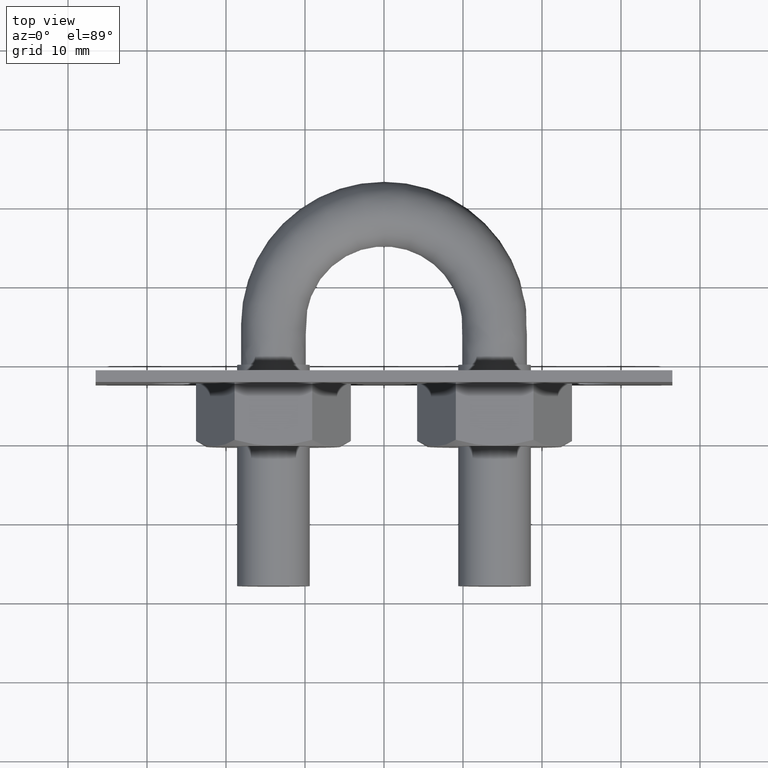
[diagram: clean part render]
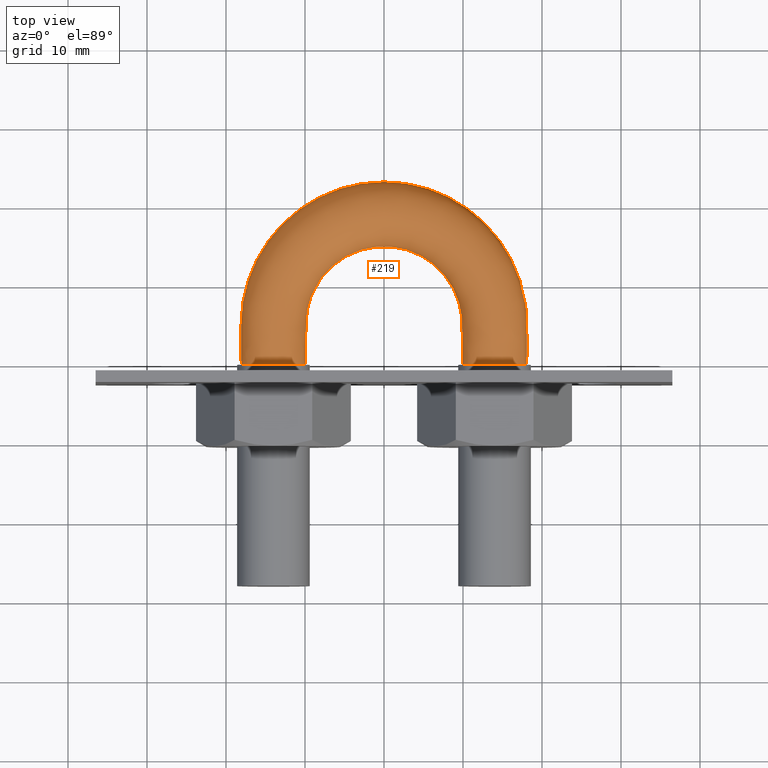
[diagram: same view with one face highlighted and labeled with its STEP entity id]
A machine part, top view. The second image highlights one B-rep face of the part: STEP entity #219.
In plain terms, the highlighted face is a freeform B-spline surface patch.
Its self-contained STEP definition (entity closure, byte-faithful):
#219 = ADVANCED_FACE( '', ( #291, #292 ), #293, .F. );
#291 = FACE_OUTER_BOUND( '', #452, .T. );
#292 = FACE_OUTER_BOUND( '', #453, .T. );
#293 = B_SPLINE_SURFACE_WITH_KNOTS( '', 3, 3, ( ( #454, #455, #456, #457, #458, #459, #460, #461, #462, #463, #464, #465, #466, #467, #468, #469 ), ( #470, #471, #472, #473, #474, #475, #476, #477, #478, #479, #480, #481, #482, #483, #484, #485 ), ( #486, #487, #488, #489, #490, #491, #492, #493, #494, #495, #496, #497, #498, #499, #500, #501 ), ( #502, #503, #504, #505, #506, #507, #508, #509, #510, #511, #512, #513, #514, #515, #516, #517 ), ( #518, #519, #520, #521, #522, #523, #524, #525, #526, #527, #528, #529, #530, #531, #532, #533 ), ( #534, #535, #536, #537, #538, #539, #540, #541, #542, #543, #544, #545, #546, #547, #548, #549 ), ( #550, #551, #552, #553, #554, #555, #556, #557, #558, #559, #560, #561, #562, #563, #564, #565 ), ( #566, #567, #568, #569, #570, #571, #572, #573, #574, #575, #576, #577, #578, #579, #580, #581 ), ( #582, #583, #584, #585, #586, #587, #588, #589, #590, #591, #592, #593, #594, #595, #596, #597 ), ( #598, #599, #600, #601, #602, #603, #604, #605, #606, #607, #608, #609, #610, #611, #612, #613 ) ), .UNSPECIFIED., .T., .F., .F., ( 2, 1, 1, 1, 1, 1, 1, 1, 1, 1, 1, 2 ), ( 4, 3, 1, 1, 1, 1, 1, 1, 3, 4 ), ( -0.285714285714286, -0.142857142857143, 0.000000000000000, 0.142857142857143, 0.285714285714286, 0.428571428571429, 0.571428571428571, 0.714285714285714, 0.857142857142857, 1.00000000000000, 1.14285714285714, 1.28571428571429 ), ( 0.000000000000000, 1.00000000000000, 1.50000000000000, 2.00000000000000, 3.00000000000000, 4.00000000000000, 5.00000000000000, 5.50000000000000, 6.00000000000000, 7.00000000000000 ), .UNSPECIFIED. );
#452 = EDGE_LOOP( '', ( #772 ) );
#453 = EDGE_LOOP( '', ( #773 ) );
#454 = CARTESIAN_POINT( '', ( -11.0768231851220, -1.21873744861496E-015, -3.66554778583225 ) );
#455 = CARTESIAN_POINT( '', ( -11.0768231851220, 1.70000000000001, -3.66554778583225 ) );
#456 = CARTESIAN_POINT( '', ( -11.0768231851220, 3.40000000000002, -3.66554778583225 ) );
#457 = CARTESIAN_POINT( '', ( -11.0768231851220, 5.10000000000004, -3.66554778583225 ) );
#458 = CARTESIAN_POINT( '', ( -11.0768231851219, 6.24814688710956, -3.66554778583225 ) );
#459 = CARTESIAN_POINT( '', ( -10.6980184043242, 8.58085942037710, -3.66554778583225 ) );
#460 = CARTESIAN_POINT( '', ( -8.58609946295960, 12.7673424534321, -3.66554778583225 ) );
#461 = CARTESIAN_POINT( '', ( -3.65508581849396, 16.3515204742163, -3.66554778583225 ) );
#462 = CARTESIAN_POINT( '', ( 3.65508581849401, 16.3515204742163, -3.66554778583225 ) );
#463 = CARTESIAN_POINT( '', ( 8.58609946295963, 12.7673424534321, -3.66554778583224 ) );
#464 = CARTESIAN_POINT( '', ( 10.6980184043242, 8.58085942037707, -3.66554778583226 ) );
#465 = CARTESIAN_POINT( '', ( 11.0768231851220, 6.24814688710953, -3.66554778583225 ) );
#466 = CARTESIAN_POINT( '', ( 11.0768231851220, 5.10000000000000, -3.66554778583225 ) );
#467 = CARTESIAN_POINT( '', ( 11.0768231851220, 3.40000000000000, -3.66554778583225 ) );
#468 = CARTESIAN_POINT( '', ( 11.0768231851220, 1.70000000000000, -3.66554778583225 ) );
#469 = CARTESIAN_POINT( '', ( 11.0768231851220, -6.73562089679684E-015, -3.66554778583225 ) );
#470 = CARTESIAN_POINT( '', ( -9.31158840743902, -1.59472503032496E-015, 0.000000000000000 ) );
#471 = CARTESIAN_POINT( '', ( -9.31158840743901, 1.70000000000001, 0.000000000000000 ) );
#472 = CARTESIAN_POINT( '', ( -9.31158840743901, 3.40000000000002, 0.000000000000000 ) );
#473 = CARTESIAN_POINT( '', ( -9.31158840743901, 5.10000000000004, 0.000000000000000 ) );
#474 = CARTESIAN_POINT( '', ( -9.31158840743900, 6.05696037119473, 0.000000000000000 ) );
#475 = CARTESIAN_POINT( '', ( -8.99143206448358, 8.02929226792843, 0.000000000000000 ) );
#476 = CARTESIAN_POINT( '', ( -7.21879641267879, 11.5436508845794, 0.000000000000000 ) );
#477 = CARTESIAN_POINT( '', ( -3.07217095711635, 14.5588958187968, 0.000000000000000 ) );
#478 = CARTESIAN_POINT( '', ( 3.07217095711641, 14.5588958187967, 0.000000000000000 ) );
#479 = CARTESIAN_POINT( '', ( 7.21879641267881, 11.5436508845794, 0.000000000000000 ) );
#480 = CARTESIAN_POINT( '', ( 8.99143206448360, 8.02929226792840, 0.000000000000000 ) );
#481 = CARTESIAN_POINT( '', ( 9.31158840743901, 6.05696037119469, 0.000000000000000 ) );
#482 = CARTESIAN_POINT( '', ( 9.31158840743901, 5.09999999999999, 0.000000000000000 ) );
#483 = CARTESIAN_POINT( '', ( 9.31158840743901, 3.39999999999999, 0.000000000000000 ) );
#484 = CARTESIAN_POINT( '', ( 9.31158840743901, 1.69999999999999, 0.000000000000000 ) );
#485 = CARTESIAN_POINT( '', ( 9.31158840743901, -1.11630752122747E-014, 0.000000000000000 ) );
#486 = CARTESIAN_POINT( '', ( -11.0768231851220, -7.69852137737989E-016, 3.66554778583225 ) );
#487 = CARTESIAN_POINT( '', ( -11.0768231851220, 1.70000000000001, 3.66554778583225 ) );
#488 = CARTESIAN_POINT( '', ( -11.0768231851220, 3.40000000000002, 3.66554778583225 ) );
#489 = CARTESIAN_POINT( '', ( -11.0768231851220, 5.10000000000004, 3.66554778583225 ) );
#490 = CARTESIAN_POINT( '', ( -11.0768231851219, 6.24814688710956, 3.66554778583225 ) );
#491 = CARTESIAN_POINT( '', ( -10.6980184043241, 8.58085942037710, 3.66554778583225 ) );
#492 = CARTESIAN_POINT( '', ( -8.58609946295961, 12.7673424534321, 3.66554778583225 ) );
#493 = CARTESIAN_POINT( '', ( -3.65508581849396, 16.3515204742163, 3.66554778583225 ) );
#494 = CARTESIAN_POINT( '', ( 3.65508581849401, 16.3515204742163, 3.66554778583225 ) );
#495 = CARTESIAN_POINT( '', ( 8.58609946295963, 12.7673424534321, 3.66554778583224 ) );
#496 = CARTESIAN_POINT( '', ( 10.6980184043242, 8.58085942037707, 3.66554778583226 ) );
#497 = CARTESIAN_POINT( '', ( 11.0768231851220, 6.24814688710953, 3.66554778583225 ) );
#498 = CARTESIAN_POINT( '', ( 11.0768231851220, 5.10000000000000, 3.66554778583225 ) );
#499 = CARTESIAN_POINT( '', ( 11.0768231851220, 3.40000000000000, 3.66554778583225 ) );
#500 = CARTESIAN_POINT( '', ( 11.0768231851220, 1.70000000000000, 3.66554778583225 ) );
#501 = CARTESIAN_POINT( '', ( 11.0768231851220, -7.18450620767381E-015, 3.66554778583225 ) );
#502 = CARTESIAN_POINT( '', ( -15.0432697263483, 6.34735116687398E-016, 4.57086332538454 ) );
#503 = CARTESIAN_POINT( '', ( -15.0432697263483, 1.70000000000001, 4.57086332538454 ) );
#504 = CARTESIAN_POINT( '', ( -15.0432697263483, 3.40000000000002, 4.57086332538454 ) );
#505 = CARTESIAN_POINT( '', ( -15.0432697263483, 5.10000000000003, 4.57086332538454 ) );
#506 = CARTESIAN_POINT( '', ( -15.0432697263483, 6.67773908887600, 4.57086332538454 ) );
#507 = CARTESIAN_POINT( '', ( -14.5326831019287, 9.82021956200977, 4.57086332538454 ) );
#508 = CARTESIAN_POINT( '', ( -11.6584015290413, 15.5169524498852, 4.57086332538453 ) );
#509 = CARTESIAN_POINT( '', ( -4.96488362271324, 20.3795115120651, 4.57086332538454 ) );
#510 = CARTESIAN_POINT( '', ( 4.96488362271328, 20.3795115120651, 4.57086332538454 ) );
#511 = CARTESIAN_POINT( '', ( 11.6584015290413, 15.5169524498851, 4.57086332538453 ) );
#512 = CARTESIAN_POINT( '', ( 14.5326831019288, 9.82021956200975, 4.57086332538455 ) );
#513 = CARTESIAN_POINT( '', ( 15.0432697263483, 6.67773908887598, 4.57086332538454 ) );
#514 = CARTESIAN_POINT( '', ( 15.0432697263483, 5.10000000000001, 4.57086332538454 ) );
#515 = CARTESIAN_POINT( '', ( 15.0432697263483, 3.40000000000001, 4.57086332538454 ) );
#516 = CARTESIAN_POINT( '', ( 15.0432697263483, 1.70000000000000, 4.57086332538454 ) );
#517 = CARTESIAN_POINT( '', ( 15.0432697263483, 2.20414250852394E-015, 4.57086332538454 ) );
#518 = CARTESIAN_POINT( '', ( -18.2241128848102, 1.56135388201040E-015, 2.03422555230246 ) );
#519 = CARTESIAN_POINT( '', ( -18.2241128848102, 1.70000000000001, 2.03422555230246 ) );
#520 = CARTESIAN_POINT( '', ( -18.2241128848102, 3.40000000000002, 2.03422555230246 ) );
#521 = CARTESIAN_POINT( '', ( -18.2241128848102, 5.10000000000003, 2.03422555230246 ) );
#522 = CARTESIAN_POINT( '', ( -18.2241128848102, 7.02224528648000, 2.03422555230246 ) );
#523 = CARTESIAN_POINT( '', ( -17.6078454270965, 10.8141092278374, 2.03422555230246 ) );
#524 = CARTESIAN_POINT( '', ( -14.1221964916233, 17.7219684647871, 2.03422555230246 ) );
#525 = CARTESIAN_POINT( '', ( -6.01525990819099, 23.6097095247998, 2.03422555230246 ) );
#526 = CARTESIAN_POINT( '', ( 6.01525990819103, 23.6097095247998, 2.03422555230247 ) );
#527 = CARTESIAN_POINT( '', ( 14.1221964916234, 17.7219684647871, 2.03422555230246 ) );
#528 = CARTESIAN_POINT( '', ( 17.6078454270965, 10.8141092278374, 2.03422555230247 ) );
#529 = CARTESIAN_POINT( '', ( 18.2241128848102, 7.02224528647998, 2.03422555230246 ) );
#530 = CARTESIAN_POINT( '', ( 18.2241128848102, 5.10000000000002, 2.03422555230246 ) );
#531 = CARTESIAN_POINT( '', ( 18.2241128848102, 3.40000000000002, 2.03422555230246 ) );
#532 = CARTESIAN_POINT( '', ( 18.2241128848102, 1.70000000000001, 2.03422555230246 ) );
#533 = CARTESIAN_POINT( '', ( 18.2241128848102, 9.93302695948980E-015, 2.03422555230246 ) );
#534 = CARTESIAN_POINT( '', ( -18.2241128848102, 1.31224132836466E-015, -2.03422555230246 ) );
#535 = CARTESIAN_POINT( '', ( -18.2241128848102, 1.70000000000001, -2.03422555230246 ) );
#536 = CARTESIAN_POINT( '', ( -18.2241128848102, 3.40000000000002, -2.03422555230246 ) );
#537 = CARTESIAN_POINT( '', ( -18.2241128848102, 5.10000000000003, -2.03422555230246 ) );
#538 = CARTESIAN_POINT( '', ( -18.2241128848102, 7.02224528648000, -2.03422555230246 ) );
#539 = CARTESIAN_POINT( '', ( -17.6078454270965, 10.8141092278374, -2.03422555230246 ) );
#540 = CARTESIAN_POINT( '', ( -14.1221964916233, 17.7219684647871, -2.03422555230246 ) );
#541 = CARTESIAN_POINT( '', ( -6.01525990819099, 23.6097095247998, -2.03422555230246 ) );
#542 = CARTESIAN_POINT( '', ( 6.01525990819103, 23.6097095247998, -2.03422555230246 ) );
#543 = CARTESIAN_POINT( '', ( 14.1221964916233, 17.7219684647871, -2.03422555230246 ) );
#544 = CARTESIAN_POINT( '', ( 17.6078454270965, 10.8141092278374, -2.03422555230247 ) );
#545 = CARTESIAN_POINT( '', ( 18.2241128848102, 7.02224528647998, -2.03422555230246 ) );
#546 = CARTESIAN_POINT( '', ( 18.2241128848102, 5.10000000000002, -2.03422555230246 ) );
#547 = CARTESIAN_POINT( '', ( 18.2241128848102, 3.40000000000002, -2.03422555230246 ) );
#548 = CARTESIAN_POINT( '', ( 18.2241128848102, 1.70000000000001, -2.03422555230246 ) );
#549 = CARTESIAN_POINT( '', ( 18.2241128848102, 1.01821395131355E-014, -2.03422555230246 ) );
#550 = CARTESIAN_POINT( '', ( -15.0432697263483, 7.49842896154402E-017, -4.57086332538454 ) );
#551 = CARTESIAN_POINT( '', ( -15.0432697263483, 1.70000000000001, -4.57086332538454 ) );
#552 = CARTESIAN_POINT( '', ( -15.0432697263483, 3.40000000000002, -4.57086332538454 ) );
#553 = CARTESIAN_POINT( '', ( -15.0432697263483, 5.10000000000003, -4.57086332538454 ) );
#554 = CARTESIAN_POINT( '', ( -15.0432697263483, 6.67773908887600, -4.57086332538454 ) );
#555 = CARTESIAN_POINT( '', ( -14.5326831019287, 9.82021956200977, -4.57086332538454 ) );
#556 = CARTESIAN_POINT( '', ( -11.6584015290413, 15.5169524498852, -4.57086332538453 ) );
#557 = CARTESIAN_POINT( '', ( -4.96488362271323, 20.3795115120651, -4.57086332538454 ) );
#558 = CARTESIAN_POINT( '', ( 4.96488362271328, 20.3795115120651, -4.57086332538454 ) );
#559 = CARTESIAN_POINT( '', ( 11.6584015290413, 15.5169524498851, -4.57086332538453 ) );
#560 = CARTESIAN_POINT( '', ( 14.5326831019288, 9.82021956200975, -4.57086332538455 ) );
#561 = CARTESIAN_POINT( '', ( 15.0432697263483, 6.67773908887598, -4.57086332538454 ) );
#562 = CARTESIAN_POINT( '', ( 15.0432697263483, 5.10000000000001, -4.57086332538454 ) );
#563 = CARTESIAN_POINT( '', ( 15.0432697263483, 3.40000000000001, -4.57086332538454 ) );
#564 = CARTESIAN_POINT( '', ( 15.0432697263483, 1.70000000000001, -4.57086332538454 ) );
#565 = CARTESIAN_POINT( '', ( 15.0432697263483, 2.76389333559589E-015, -4.57086332538454 ) );
#566 = CARTESIAN_POINT( '', ( -11.0768231851220, -1.21873744861496E-015, -3.66554778583225 ) );
#567 = CARTESIAN_POINT( '', ( -11.0768231851220, 1.70000000000001, -3.66554778583225 ) );
#568 = CARTESIAN_POINT( '', ( -11.0768231851220, 3.40000000000002, -3.66554778583225 ) );
#569 = CARTESIAN_POINT( '', ( -11.0768231851220, 5.10000000000004, -3.66554778583225 ) );
#570 = CARTESIAN_POINT( '', ( -11.0768231851219, 6.24814688710956, -3.66554778583225 ) );
#571 = CARTESIAN_POINT( '', ( -10.6980184043242, 8.58085942037710, -3.66554778583225 ) );
#572 = CARTESIAN_POINT( '', ( -8.58609946295960, 12.7673424534321, -3.66554778583225 ) );
#573 = CARTESIAN_POINT( '', ( -3.65508581849396, 16.3515204742163, -3.66554778583225 ) );
#574 = CARTESIAN_POINT( '', ( 3.65508581849401, 16.3515204742163, -3.66554778583225 ) );
#575 = CARTESIAN_POINT( '', ( 8.58609946295963, 12.7673424534321, -3.66554778583224 ) );
#576 = CARTESIAN_POINT( '', ( 10.6980184043242, 8.58085942037707, -3.66554778583226 ) );
#577 = CARTESIAN_POINT( '', ( 11.0768231851220, 6.24814688710953, -3.66554778583225 ) );
#578 = CARTESIAN_POINT( '', ( 11.0768231851220, 5.10000000000000, -3.66554778583225 ) );
#579 = CARTESIAN_POINT( '', ( 11.0768231851220, 3.40000000000000, -3.66554778583225 ) );
#580 = CARTESIAN_POINT( '', ( 11.0768231851220, 1.70000000000000, -3.66554778583225 ) );
#581 = CARTESIAN_POINT( '', ( 11.0768231851220, -6.73562089679684E-015, -3.66554778583225 ) );
#582 = CARTESIAN_POINT( '', ( -9.31158840743902, -1.59472503032496E-015, 0.000000000000000 ) );
#583 = CARTESIAN_POINT( '', ( -9.31158840743901, 1.70000000000001, 0.000000000000000 ) );
#584 = CARTESIAN_POINT( '', ( -9.31158840743901, 3.40000000000002, 0.000000000000000 ) );
#585 = CARTESIAN_POINT( '', ( -9.31158840743901, 5.10000000000004, 0.000000000000000 ) );
#586 = CARTESIAN_POINT( '', ( -9.31158840743900, 6.05696037119473, 0.000000000000000 ) );
#587 = CARTESIAN_POINT( '', ( -8.99143206448358, 8.02929226792843, 0.000000000000000 ) );
#588 = CARTESIAN_POINT( '', ( -7.21879641267879, 11.5436508845794, 0.000000000000000 ) );
#589 = CARTESIAN_POINT( '', ( -3.07217095711635, 14.5588958187968, 0.000000000000000 ) );
#590 = CARTESIAN_POINT( '', ( 3.07217095711641, 14.5588958187967, 0.000000000000000 ) );
#591 = CARTESIAN_POINT( '', ( 7.21879641267881, 11.5436508845794, 0.000000000000000 ) );
#592 = CARTESIAN_POINT( '', ( 8.99143206448360, 8.02929226792840, 0.000000000000000 ) );
#593 = CARTESIAN_POINT( '', ( 9.31158840743901, 6.05696037119469, 0.000000000000000 ) );
#594 = CARTESIAN_POINT( '', ( 9.31158840743901, 5.09999999999999, 0.000000000000000 ) );
#595 = CARTESIAN_POINT( '', ( 9.31158840743901, 3.39999999999999, 0.000000000000000 ) );
#596 = CARTESIAN_POINT( '', ( 9.31158840743901, 1.69999999999999, 0.000000000000000 ) );
#597 = CARTESIAN_POINT( '', ( 9.31158840743901, -1.11630752122747E-014, 0.000000000000000 ) );
#598 = CARTESIAN_POINT( '', ( -11.0768231851220, -7.69852137737989E-016, 3.66554778583225 ) );
#599 = CARTESIAN_POINT( '', ( -11.0768231851220, 1.70000000000001, 3.66554778583225 ) );
#600 = CARTESIAN_POINT( '', ( -11.0768231851220, 3.40000000000002, 3.66554778583225 ) );
#601 = CARTESIAN_POINT( '', ( -11.0768231851220, 5.10000000000004, 3.66554778583225 ) );
#602 = CARTESIAN_POINT( '', ( -11.0768231851219, 6.24814688710956, 3.66554778583225 ) );
#603 = CARTESIAN_POINT( '', ( -10.6980184043241, 8.58085942037710, 3.66554778583225 ) );
#604 = CARTESIAN_POINT( '', ( -8.58609946295961, 12.7673424534321, 3.66554778583225 ) );
#605 = CARTESIAN_POINT( '', ( -3.65508581849396, 16.3515204742163, 3.66554778583225 ) );
#606 = CARTESIAN_POINT( '', ( 3.65508581849401, 16.3515204742163, 3.66554778583225 ) );
#607 = CARTESIAN_POINT( '', ( 8.58609946295963, 12.7673424534321, 3.66554778583224 ) );
#608 = CARTESIAN_POINT( '', ( 10.6980184043242, 8.58085942037707, 3.66554778583226 ) );
#609 = CARTESIAN_POINT( '', ( 11.0768231851220, 6.24814688710953, 3.66554778583225 ) );
#610 = CARTESIAN_POINT( '', ( 11.0768231851220, 5.10000000000000, 3.66554778583225 ) );
#611 = CARTESIAN_POINT( '', ( 11.0768231851220, 3.40000000000000, 3.66554778583225 ) );
#612 = CARTESIAN_POINT( '', ( 11.0768231851220, 1.70000000000000, 3.66554778583225 ) );
#613 = CARTESIAN_POINT( '', ( 11.0768231851220, -7.18450620767381E-015, 3.66554778583225 ) );
#772 = ORIENTED_EDGE( '', *, *, #1298, .T. );
#773 = ORIENTED_EDGE( '', *, *, #1299, .T. );
#1298 = EDGE_CURVE( '', #1456, #1456, #1457, .F. );
#1299 = EDGE_CURVE( '', #1458, #1458, #1459, .T. );
#1456 = VERTEX_POINT( '', #1720 );
#1457 = B_SPLINE_CURVE_WITH_KNOTS( '', 3, ( #1721, #1722, #1723, #1724, #1725, #1726, #1727, #1728, #1729, #1730 ), .UNSPECIFIED., .T., .F., ( 4, 1, 1, 1, 1, 1, 1, 4 ), ( 0.000000000000000, 0.142857142857143, 0.285714285714286, 0.428571428571429, 0.571428571428571, 0.714285714285714, 0.857142857142857, 1.00000000000000 ), .UNSPECIFIED. );
#1458 = VERTEX_POINT( '', #1731 );
#1459 = B_SPLINE_CURVE_WITH_KNOTS( '', 3, ( #1732, #1733, #1734, #1735, #1736, #1737, #1738, #1739, #1740, #1741 ), .UNSPECIFIED., .T., .F., ( 4, 1, 1, 1, 1, 1, 1, 4 ), ( 0.000000000000000, 0.142857142857143, 0.285714285714286, 0.428571428571429, 0.571428571428571, 0.714285714285714, 0.857142857142857, 1.00000000000000 ), .UNSPECIFIED. );
#1720 = CARTESIAN_POINT( '', ( -9.90000000000000, -1.39458161794213E-015, 1.19262238973405E-015 ) );
#1721 = CARTESIAN_POINT( '', ( -9.90000000000000, -1.39458161794213E-015, 4.33680868994202E-016 ) );
#1722 = CARTESIAN_POINT( '', ( -9.90000000000000, -1.31976739946264E-015, 1.22184926194408 ) );
#1723 = CARTESIAN_POINT( '', ( -11.0768231851220, -7.69852137737989E-016, 3.66554778583225 ) );
#1724 = CARTESIAN_POINT( '', ( -15.0432697263483, 6.34735116687398E-016, 4.57086332538454 ) );
#1725 = CARTESIAN_POINT( '', ( -18.2241128848102, 1.56135388201040E-015, 2.03422555230246 ) );
#1726 = CARTESIAN_POINT( '', ( -18.2241128848102, 1.31224132836466E-015, -2.03422555230246 ) );
#1727 = CARTESIAN_POINT( '', ( -15.0432697263483, 7.49842896154402E-017, -4.57086332538454 ) );
#1728 = CARTESIAN_POINT( '', ( -11.0768231851220, -1.21873744861496E-015, -3.66554778583225 ) );
#1729 = CARTESIAN_POINT( '', ( -9.90000000000000, -1.46939583642163E-015, -1.22184926194408 ) );
#1730 = CARTESIAN_POINT( '', ( -9.90000000000000, -1.39458161794213E-015, 4.33680868994202E-016 ) );
#1731 = CARTESIAN_POINT( '', ( 9.89999999999998, -9.76207132559494E-015, 4.33680868994202E-016 ) );
#1732 = CARTESIAN_POINT( '', ( 9.89999999999998, -9.76207132559494E-015, 4.33680868994202E-016 ) );
#1733 = CARTESIAN_POINT( '', ( 9.89999999999998, -9.83688554407443E-015, 1.22184926194408 ) );
#1734 = CARTESIAN_POINT( '', ( 11.0768231851220, -7.18450620767381E-015, 3.66554778583225 ) );
#1735 = CARTESIAN_POINT( '', ( 15.0432697263483, 2.20414250852394E-015, 4.57086332538454 ) );
#1736 = CARTESIAN_POINT( '', ( 18.2241128848102, 9.93302695948980E-015, 2.03422555230246 ) );
#1737 = CARTESIAN_POINT( '', ( 18.2241128848102, 1.01821395131355E-014, -2.03422555230246 ) );
#1738 = CARTESIAN_POINT( '', ( 15.0432697263483, 2.76389333559589E-015, -4.57086332538454 ) );
#1739 = CARTESIAN_POINT( '', ( 11.0768231851220, -6.73562089679684E-015, -3.66554778583225 ) );
#1740 = CARTESIAN_POINT( '', ( 9.89999999999999, -9.68725710711544E-015, -1.22184926194408 ) );
#1741 = CARTESIAN_POINT( '', ( 9.89999999999998, -9.76207132559494E-015, 4.33680868994202E-016 ) );